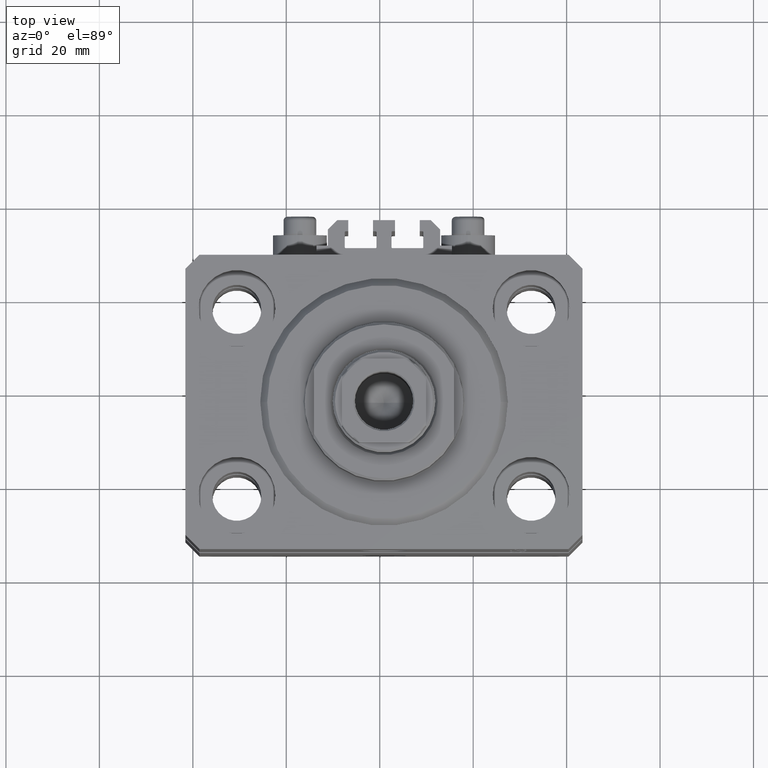
[diagram: clean part render]
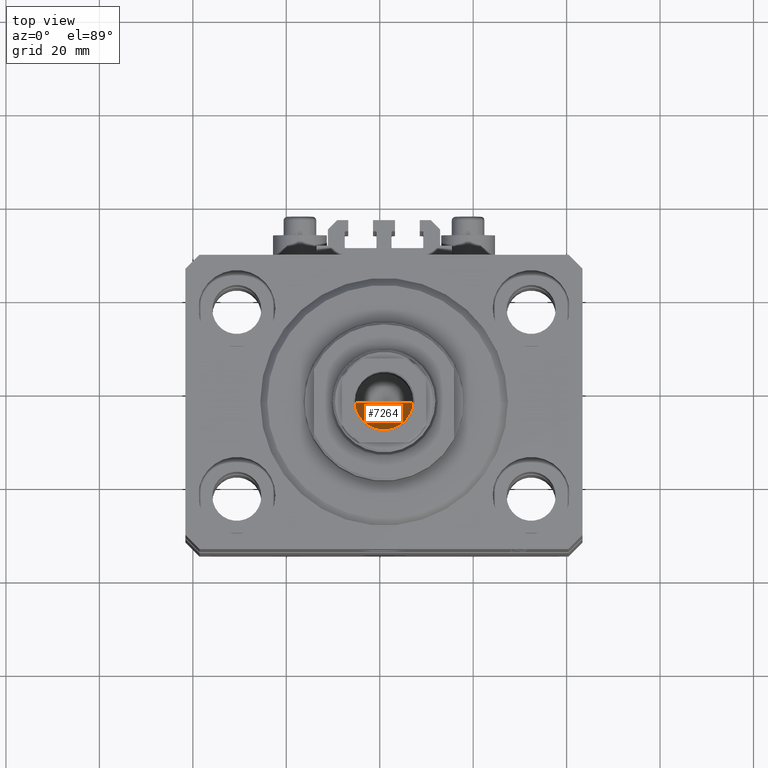
[diagram: same view with one face highlighted and labeled with its STEP entity id]
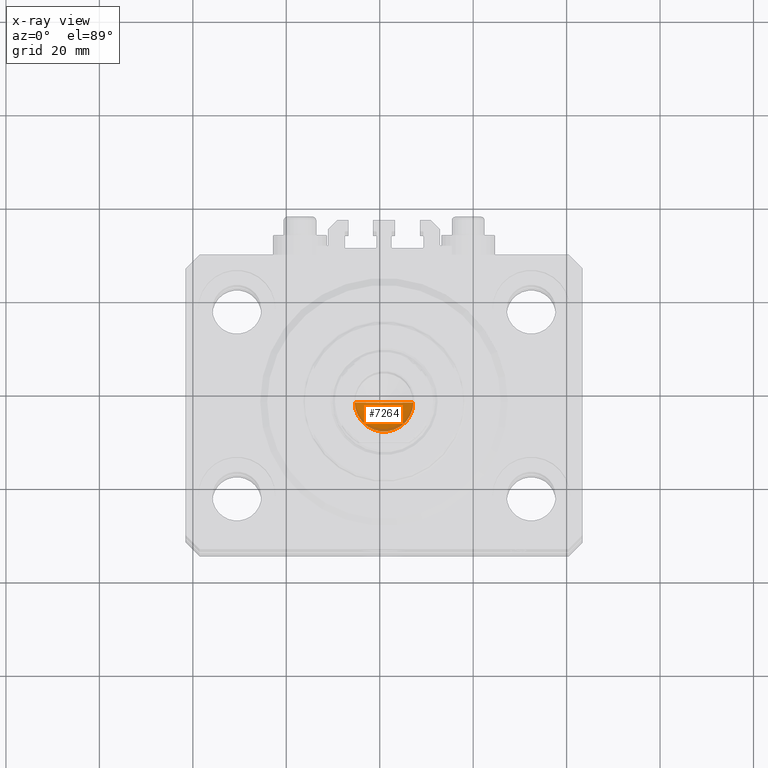
[diagram: x-ray of the same camera — body ghosted, the highlighted face saturated]
A machine part, top view. The second image highlights one B-rep face of the part: STEP entity #7264.
The next image is the same camera in x-ray: the body ghosted, the highlighted face saturated — about 9% of this face is hidden behind the body in this view.
In plain terms, the highlighted conical surface has half-angle 59 deg.
Its self-contained STEP definition (entity closure, byte-faithful):
#2411 = DIRECTION ( 'NONE',  ( 1.000000000000000000, 0.000000000000000000, 0.000000000000000000 ) ) ;
#2885 = FACE_OUTER_BOUND ( 'NONE', #6307, .T. ) ;
#3437 = CARTESIAN_POINT ( 'NONE',  ( 6.249999999999993783, 0.000000000000000000, 73.59999999999999432 ) ) ;
#3463 = ORIENTED_EDGE ( 'NONE', *, *, #46771, .F. ) ;
#4154 = DIRECTION ( 'NONE',  ( -0.8571673007021122226, 1.049727191138618696E-16, 0.5150380749100541555 ) ) ;
#6307 = EDGE_LOOP ( 'NONE', ( #3463, #6974, #23687 ) ) ;
#6974 = ORIENTED_EDGE ( 'NONE', *, *, #13039, .T. ) ;
#7264 = ADVANCED_FACE ( 'NONE', ( #2885 ), #47311, .F. ) ;
#8248 = DIRECTION ( 'NONE',  ( -0.000000000000000000, -0.000000000000000000, 1.000000000000000000 ) ) ;
#10653 = LINE ( 'NONE', #3437, #13390 ) ;
#12304 = LINE ( 'NONE', #18581, #32134 ) ;
#12332 = DIRECTION ( 'NONE',  ( 1.000000000000000000, 0.000000000000000000, 0.000000000000000000 ) ) ;
#13039 = EDGE_CURVE ( 'NONE', #21813, #37137, #12304, .T. ) ;
#13390 = VECTOR ( 'NONE', #25304, 1000.000000000000114 ) ;
#18581 = CARTESIAN_POINT ( 'NONE',  ( -6.249999999999993783, 7.654042494670949718E-16, 73.59999999999999432 ) ) ;
#20652 = AXIS2_PLACEMENT_3D ( 'NONE', #41199, #8248, #12332 ) ;
#21739 = CARTESIAN_POINT ( 'NONE',  ( 6.249999999999993783, 0.000000000000000000, 73.59999999999999432 ) ) ;
#21813 = VERTEX_POINT ( 'NONE', #29943 ) ;
#21915 = CARTESIAN_POINT ( 'NONE',  ( -6.249999999999993783, 7.654042494670949718E-16, 73.59999999999999432 ) ) ;
#23687 = ORIENTED_EDGE ( 'NONE', *, *, #28058, .T. ) ;
#25304 = DIRECTION ( 'NONE',  ( 0.8571673007021122226, 0.000000000000000000, 0.5150380749100541555 ) ) ;
#26552 = AXIS2_PLACEMENT_3D ( 'NONE', #28125, #35104, #2411 ) ;
#28058 = EDGE_CURVE ( 'NONE', #37137, #41543, #29797, .T. ) ;
#28125 = CARTESIAN_POINT ( 'NONE',  ( 0.000000000000000000, 0.000000000000000000, 73.59999999999999432 ) ) ;
#29797 = CIRCLE ( 'NONE', #20652, 6.249999999999993783 ) ;
#29943 = CARTESIAN_POINT ( 'NONE',  ( -7.434177670704979810E-15, 0.000000000000000000, 69.84462113107775849 ) ) ;
#32134 = VECTOR ( 'NONE', #4154, 1000.000000000000114 ) ;
#35104 = DIRECTION ( 'NONE',  ( -0.000000000000000000, -0.000000000000000000, 1.000000000000000000 ) ) ;
#37137 = VERTEX_POINT ( 'NONE', #21915 ) ;
#41199 = CARTESIAN_POINT ( 'NONE',  ( 0.000000000000000000, 0.000000000000000000, 73.59999999999999432 ) ) ;
#41543 = VERTEX_POINT ( 'NONE', #21739 ) ;
#46771 = EDGE_CURVE ( 'NONE', #21813, #41543, #10653, .T. ) ;
#47311 = CONICAL_SURFACE ( 'NONE', #26552, 6.249999999999993783, 1.029744258676654534 ) ;